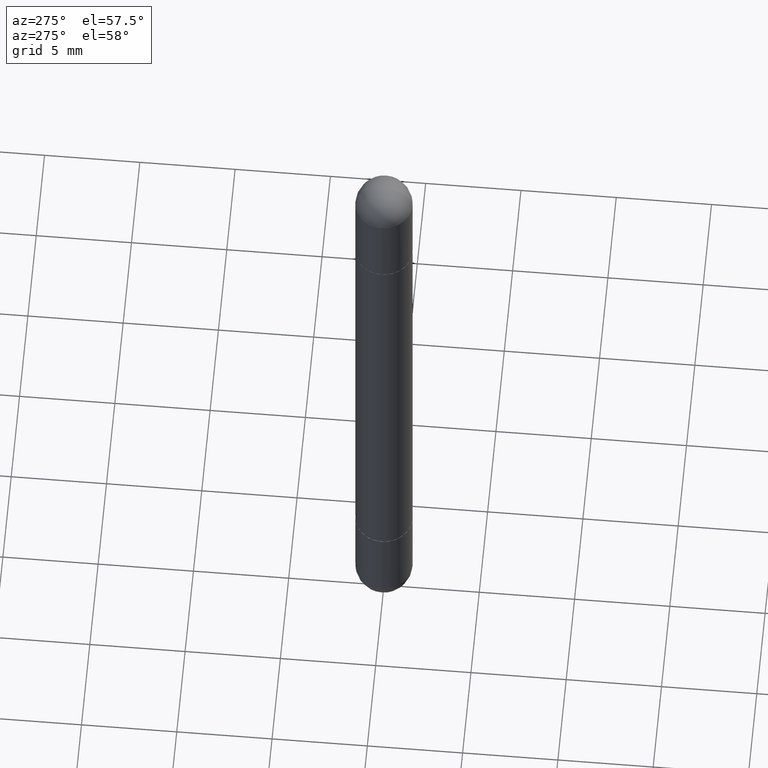
[diagram: clean part render]
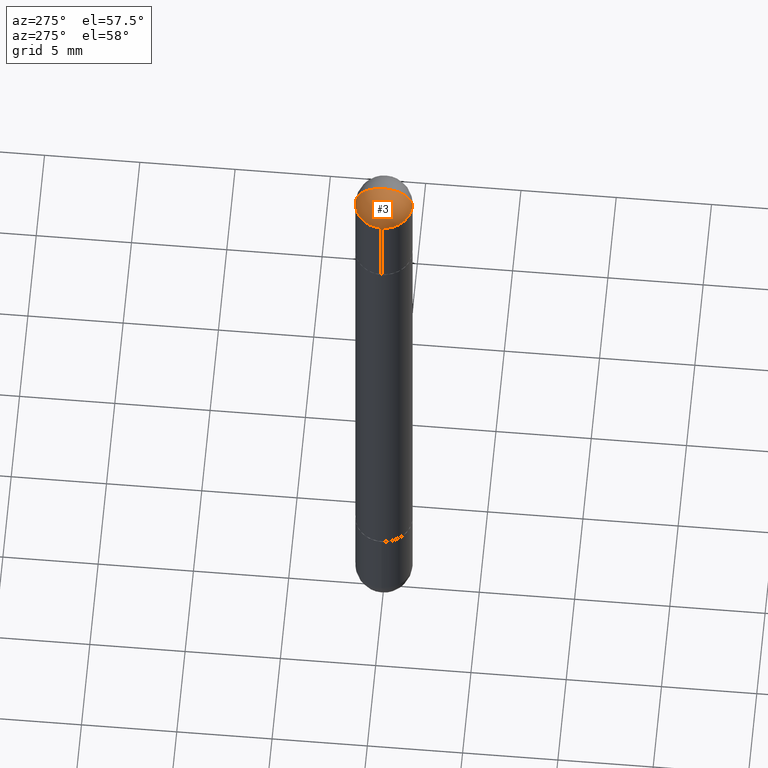
[diagram: same view with one face highlighted and labeled with its STEP entity id]
A machine part, auxiliary view. The second image highlights one B-rep face of the part: STEP entity #3.
In plain terms, the highlighted spherical surface has radius 1.4999 mm.
Its self-contained STEP definition (entity closure, byte-faithful):
#3 = ADVANCED_FACE ( 'NONE', ( #662 ), #674, .T. ) ;
#30 = EDGE_LOOP ( 'NONE', ( #652, #525, #338, #500 ) ) ;
#44 = CARTESIAN_POINT ( 'NONE',  ( 3.514260947928350449E-29, -5.017433257984542594E-15, -0.05905000000000028976 ) ) ;
#99 = VERTEX_POINT ( 'NONE', #550 ) ;
#100 = EDGE_CURVE ( 'NONE', #121, #599, #685, .T. ) ;
#101 = CARTESIAN_POINT ( 'NONE',  ( 3.183141170014464762E-29, -5.491615626124592102E-15, -0.05905000000000028976 ) ) ;
#110 = DIRECTION ( 'NONE',  ( 1.000000000000000000, -6.982962677686265922E-15, -4.883557194083112340E-29 ) ) ;
#121 = VERTEX_POINT ( 'NONE', #247 ) ;
#134 = DIRECTION ( 'NONE',  ( 2.445468806185136597E-29, -3.491481338843145583E-15, 1.000000000000000000 ) ) ;
#181 = CARTESIAN_POINT ( 'NONE',  ( 3.514260947928350449E-29, -5.017433257984542594E-15, -0.05905000000000028976 ) ) ;
#182 = AXIS2_PLACEMENT_3D ( 'NONE', #181, #134, #430 ) ;
#183 = AXIS2_PLACEMENT_3D ( 'NONE', #44, #796, #233 ) ;
#229 = DIRECTION ( 'NONE',  ( 6.982962677686265922E-15, 1.000000000000000000, 3.469747663417762014E-15 ) ) ;
#233 = DIRECTION ( 'NONE',  ( 1.000000000000000000, -6.982962677686270655E-15, 0.000000000000000000 ) ) ;
#247 = CARTESIAN_POINT ( 'NONE',  ( 4.123439461174084467E-16, 0.05904999999999487742, -0.05905000000000008159 ) ) ;
#285 = CARTESIAN_POINT ( 'NONE',  ( 3.183141170014464762E-29, -5.491615626124592102E-15, -0.05905000000000028976 ) ) ;
#290 = AXIS2_PLACEMENT_3D ( 'NONE', #679, #110, #229 ) ;
#291 = AXIS2_PLACEMENT_3D ( 'NONE', #101, #475, #407 ) ;
#299 = CIRCLE ( 'NONE', #291, 0.05905000000000025506 ) ;
#338 = ORIENTED_EDGE ( 'NONE', *, *, #100, .T. ) ;
#384 = EDGE_CURVE ( 'NONE', #599, #782, #428, .T. ) ;
#407 = DIRECTION ( 'NONE',  ( 6.860497997771530774E-15, 1.000000000000000000, 0.000000000000000000 ) ) ;
#428 = CIRCLE ( 'NONE', #183, 0.05905000000000001914 ) ;
#430 = DIRECTION ( 'NONE',  ( 1.000000000000000000, -6.982962677686270655E-15, 0.000000000000000000 ) ) ;
#433 = CARTESIAN_POINT ( 'NONE',  ( -0.05905000000000001914, -4.303062891628101254E-15, -0.05905000000000028976 ) ) ;
#452 = EDGE_CURVE ( 'NONE', #99, #121, #548, .T. ) ;
#475 = DIRECTION ( 'NONE',  ( 1.000000000000000000, -6.860497997771530774E-15, -4.840798879624142912E-29 ) ) ;
#495 = EDGE_CURVE ( 'NONE', #99, #782, #299, .T. ) ;
#500 = ORIENTED_EDGE ( 'NONE', *, *, #384, .T. ) ;
#525 = ORIENTED_EDGE ( 'NONE', *, *, #452, .T. ) ;
#543 = DIRECTION ( 'NONE',  ( -1.000000000000000000, 6.982962677686265922E-15, 4.883557194083112340E-29 ) ) ;
#548 = CIRCLE ( 'NONE', #657, 0.05905000000000025506 ) ;
#550 = CARTESIAN_POINT ( 'NONE',  ( 3.330070981488499955E-29, -5.694171829508798064E-15, -3.414809992080329023E-17 ) ) ;
#599 = VERTEX_POINT ( 'NONE', #433 ) ;
#650 = CARTESIAN_POINT ( 'NONE',  ( -4.051124067683763770E-16, -0.05905000000000539678, -0.05905000000000049099 ) ) ;
#652 = ORIENTED_EDGE ( 'NONE', *, *, #495, .F. ) ;
#655 = DIRECTION ( 'NONE',  ( -6.982962677686266711E-15, -1.000000000000000000, 0.000000000000000000 ) ) ;
#657 = AXIS2_PLACEMENT_3D ( 'NONE', #285, #543, #655 ) ;
#662 = FACE_OUTER_BOUND ( 'NONE', #30, .T. ) ;
#674 = SPHERICAL_SURFACE ( 'NONE', #290, 0.05905000000000025506 ) ;
#679 = CARTESIAN_POINT ( 'NONE',  ( 3.183141170014464762E-29, -5.491615626124592102E-15, -0.05905000000000028976 ) ) ;
#685 = CIRCLE ( 'NONE', #182, 0.05905000000000001914 ) ;
#782 = VERTEX_POINT ( 'NONE', #650 ) ;
#796 = DIRECTION ( 'NONE',  ( 2.445468806185136597E-29, -3.491481338843145583E-15, 1.000000000000000000 ) ) ;